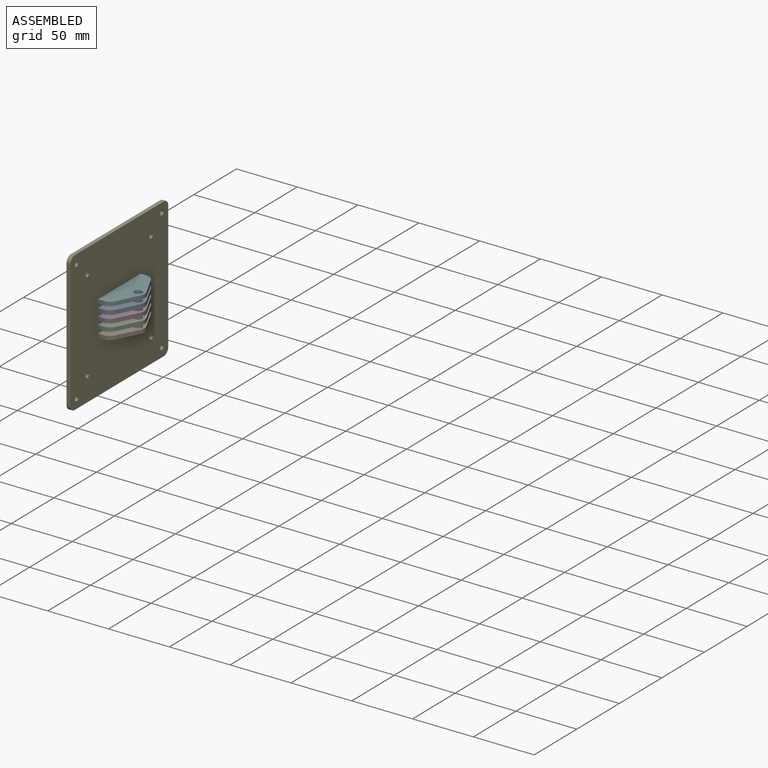
[diagram: assembled view]
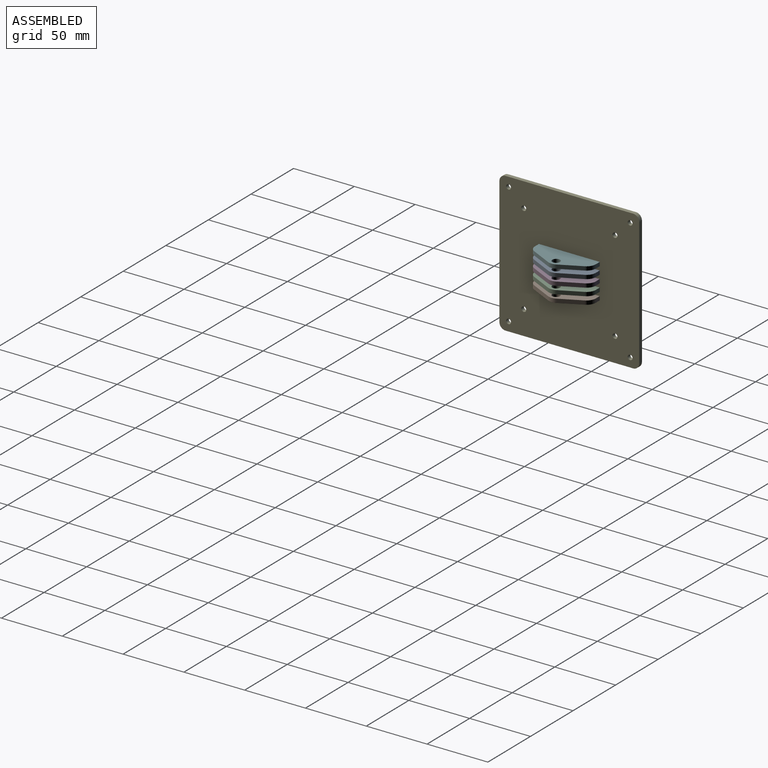
[diagram: assembled view, second angle]
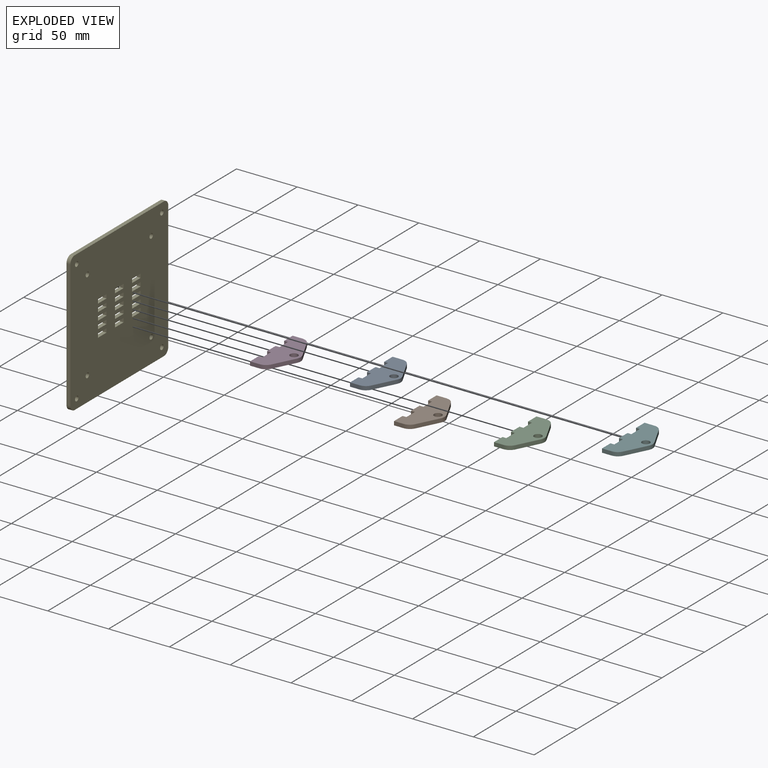
[diagram: exploded view]
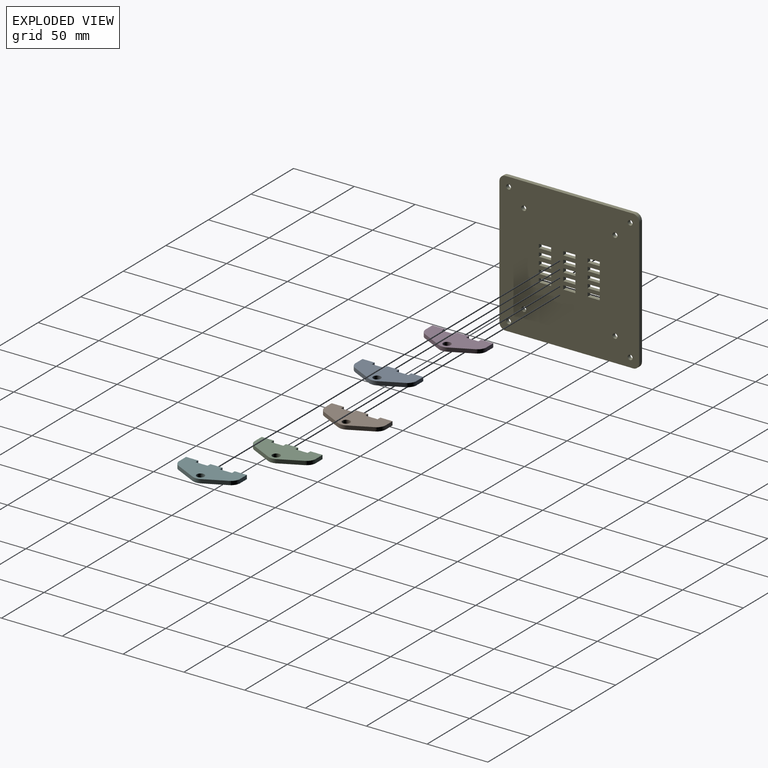
[diagram: exploded view, second angle]
ASSEMBLY  parts=6 mates=5
PART A: 19 faces, bbox 50x24.1x3.2 mm
  f0: plane 10x3.18mm, normal (0,-1,0), area 31.7mm2, adj f5,f6,f15,f16
  f1: plane 10x3.18mm, normal (0,-1,0), area 31.7mm2, adj f3,f5,f6,f13
  f2: plane 7.86x3.18mm, normal (-1,0,0), area 25mm2, adj f4,f5,f6,f10
  f3: plane 7.86x3.18mm, normal (1,0,0), area 25mm2, adj f1,f5,f6,f12
  f4: plane 10x3.18mm, normal (0,-1,0), area 31.8mm2, adj f2,f5,f6,f18
  f5: plane 50x24.11mm, normal (0,0,1), area 833mm2, adj f0,f1,f2,f3,f4,f7,f8,f9
  f6: plane 50x24.11mm, normal (0,0,-1), area 833mm2, adj f0,f1,f2,f3,f4,f7,f8,f9
  f7: cylinder r=3.17mm len=6.35mm, axis (0,0,1), area 63.3mm2, adj f5,f6
  f8: plane 17.5x8.75mm, normal (0.45,0.89,0), area 62.1mm2, adj f5,f6,f11,f12
  f9: plane 17.5x8.75mm, normal (-0.45,0.89,0), area 62.1mm2, adj f5,f6,f10,f11
  f10: cylinder r=7.5mm len=6.71mm, axis (0,0,1), area 26.4mm2, adj f2,f5,f6,f9
  f11: cylinder r=7.5mm len=6.71mm, axis (0,0,1), area 22.1mm2, adj f5,f6,f8,f9
  f12: cylinder r=7.5mm len=6.71mm, axis (0,0,-1), area 26.4mm2, adj f3,f5,f6,f8
  f13: plane 3.18x3.18mm, normal (-1,0,0), area 10.1mm2, adj f1,f5,f6,f14
  f14: plane 10x3.18mm, normal (0,-1,0), area 31.7mm2, adj f5,f6,f13,f15
  f15: plane 3.18x3.18mm, normal (1,0,0), area 10.1mm2, adj f0,f5,f6,f14
  f16: plane 3.18x3.18mm, normal (-1,0,0), area 10.1mm2, adj f0,f5,f6,f17
  f17: plane 10x3.18mm, normal (0,-1,0), area 31.7mm2, adj f5,f6,f16,f18
  f18: plane 3.18x3.18mm, normal (1,0,0), area 10.1mm2, adj f4,f5,f6,f17
PART B: same geometry as A
PART C: same geometry as A
PART D: same geometry as A
PART E: 78 faces, bbox 115x3.2x115 mm
  f0: plane 115x115mm, normal (0,-1,0), area 12626.8mm2, adj f2,f3,f4,f5,f6,f7,f8,f9
  f1: plane 115x115mm, normal (0,1,0), area 12626.8mm2, adj f2,f3,f4,f5,f6,f7,f8,f9
  f2: plane 105x3.18mm, normal (-1,0,0), area 333.4mm2, adj f0,f1,f14,f17
  f3: plane 105x3.18mm, normal (0,0,-1), area 333.4mm2, adj f0,f1,f14,f15
  f4: plane 105x3.18mm, normal (1,0,0), area 333.4mm2, adj f0,f1,f15,f16
  f5: plane 105x3.18mm, normal (0,0,1), area 333.4mm2, adj f0,f1,f16,f17
  f6: cylinder r=2mm len=4mm, axis (0,-1,0), area 39.9mm2, adj f0,f1
  f7: cylinder r=2mm len=4mm, axis (0,-1,0), area 39.9mm2, adj f0,f1
  f8: cylinder r=2mm len=4mm, axis (0,-1,0), area 39.9mm2, adj f0,f1
  f9: cylinder r=2mm len=4mm, axis (0,-1,0), area 39.9mm2, adj f0,f1
  f10: cylinder r=2mm len=4mm, axis (0,-1,0), area 39.9mm2, adj f0,f1
  f11: cylinder r=2mm len=4mm, axis (0,-1,0), area 39.9mm2, adj f0,f1
  f12: cylinder r=2mm len=4mm, axis (0,-1,0), area 39.9mm2, adj f0,f1
  f13: cylinder r=2mm len=4mm, axis (0,-1,0), area 39.9mm2, adj f0,f1
  f14: cylinder r=5mm len=5mm, axis (0,1,0), area 24.9mm2, adj f0,f1,f2,f3
  f15: cylinder r=5mm len=5mm, axis (0,-1,0), area 24.9mm2, adj f0,f1,f3,f4
  f16: cylinder r=5mm len=5mm, axis (0,1,0), area 24.9mm2, adj f0,f1,f4,f5
  f17: cylinder r=5mm len=5mm, axis (0,-1,0), area 24.9mm2, adj f0,f1,f2,f5
  f18: plane 3.18x3.18mm, normal (1,0,0), area 10.1mm2, adj f0,f1,f19,f21
  f19: plane 10x3.18mm, normal (0,0,1), area 31.8mm2, adj f0,f1,f18,f20
  f20: plane 3.18x3.18mm, normal (-1,0,0), area 10.1mm2, adj f0,f1,f19,f21
  f21: plane 10x3.18mm, normal (0,0,-1), area 31.8mm2, adj f0,f1,f18,f20
  f22: plane 3.18x3.18mm, normal (1,0,0), area 10.1mm2, adj f0,f1,f23,f25
  f23: plane 10x3.18mm, normal (0,0,1), area 31.8mm2, adj f0,f1,f22,f24
  f24: plane 3.18x3.18mm, normal (-1,0,0), area 10.1mm2, adj f0,f1,f23,f25
  f25: plane 10x3.18mm, normal (0,0,-1), area 31.8mm2, adj f0,f1,f22,f24
  f26: plane 3.18x3.18mm, normal (1,0,0), area 10.1mm2, adj f0,f1,f27,f29
  f27: plane 10x3.18mm, normal (0,0,1), area 31.8mm2, adj f0,f1,f26,f28
  f28: plane 3.18x3.18mm, normal (-1,0,0), area 10.1mm2, adj f0,f1,f27,f29
  f29: plane 10x3.18mm, normal (0,0,-1), area 31.8mm2, adj f0,f1,f26,f28
  f30: plane 3.18x3.18mm, normal (-1,0,0), area 10.1mm2, adj f0,f1,f31,f33
  f31: plane 10x3.18mm, normal (0,0,-1), area 31.8mm2, adj f0,f1,f30,f32
  f32: plane 3.18x3.18mm, normal (1,0,0), area 10.1mm2, adj f0,f1,f31,f33
  f33: plane 10x3.18mm, normal (0,0,1), area 31.8mm2, adj f0,f1,f30,f32
  f34: plane 3.18x3.18mm, normal (1,0,0), area 10.1mm2, adj f0,f1,f35,f37
  f35: plane 10x3.18mm, normal (0,0,1), area 31.8mm2, adj f0,f1,f34,f36
  f36: plane 3.18x3.18mm, normal (-1,0,0), area 10.1mm2, adj f0,f1,f35,f37
  f37: plane 10x3.18mm, normal (0,0,-1), area 31.8mm2, adj f0,f1,f34,f36
  f38: plane 3.18x3.18mm, normal (-1,0,0), area 10.1mm2, adj f0,f1,f39,f41
  f39: plane 10x3.18mm, normal (0,0,-1), area 31.8mm2, adj f0,f1,f38,f40
  f40: plane 3.18x3.18mm, normal (1,0,0), area 10.1mm2, adj f0,f1,f39,f41
  f41: plane 10x3.18mm, normal (0,0,1), area 31.8mm2, adj f0,f1,f38,f40
  f42: plane 3.18x3.18mm, normal (1,0,0), area 10.1mm2, adj f0,f1,f43,f45
  f43: plane 10x3.18mm, normal (0,0,1), area 31.8mm2, adj f0,f1,f42,f44
  f44: plane 3.18x3.18mm, normal (-1,0,0), area 10.1mm2, adj f0,f1,f43,f45
  f45: plane 10x3.18mm, normal (0,0,-1), area 31.8mm2, adj f0,f1,f42,f44
  f46: plane 3.18x3.18mm, normal (-1,0,0), area 10.1mm2, adj f0,f1,f47,f49
  f47: plane 10x3.18mm, normal (0,0,-1), area 31.8mm2, adj f0,f1,f46,f48
  f48: plane 3.18x3.18mm, normal (1,0,0), area 10.1mm2, adj f0,f1,f47,f49
  f49: plane 10x3.18mm, normal (0,0,1), area 31.8mm2, adj f0,f1,f46,f48
  f50: plane 3.18x3.18mm, normal (-1,0,0), area 10.1mm2, adj f0,f1,f51,f53
  f51: plane 10x3.18mm, normal (0,0,-1), area 31.8mm2, adj f0,f1,f50,f52
  f52: plane 3.18x3.18mm, normal (1,0,0), area 10.1mm2, adj f0,f1,f51,f53
  f53: plane 10x3.18mm, normal (0,0,1), area 31.8mm2, adj f0,f1,f50,f52
  f54: plane 3.18x3.18mm, normal (1,0,0), area 10.1mm2, adj f0,f1,f55,f57
  f55: plane 10x3.18mm, normal (0,0,1), area 31.8mm2, adj f0,f1,f54,f56
  f56: plane 3.18x3.18mm, normal (-1,0,0), area 10.1mm2, adj f0,f1,f55,f57
  f57: plane 10x3.18mm, normal (0,0,-1), area 31.8mm2, adj f0,f1,f54,f56
  f58: plane 3.18x3.18mm, normal (-1,0,0), area 10.1mm2, adj f0,f1,f59,f61
  f59: plane 10x3.18mm, normal (0,0,-1), area 31.8mm2, adj f0,f1,f58,f60
  f60: plane 3.18x3.18mm, normal (1,0,0), area 10.1mm2, adj f0,f1,f59,f61
  f61: plane 10x3.18mm, normal (0,0,1), area 31.8mm2, adj f0,f1,f58,f60
  f62: plane 3.18x3.18mm, normal (1,0,0), area 10.1mm2, adj f0,f1,f63,f65
  f63: plane 10x3.18mm, normal (0,0,1), area 31.8mm2, adj f0,f1,f62,f64
  f64: plane 3.18x3.18mm, normal (-1,0,0), area 10.1mm2, adj f0,f1,f63,f65
  f65: plane 10x3.18mm, normal (0,0,-1), area 31.8mm2, adj f0,f1,f62,f64
  f66: plane 3.18x3.18mm, normal (-1,0,0), area 10.1mm2, adj f0,f1,f67,f69
  f67: plane 10x3.18mm, normal (0,0,-1), area 31.8mm2, adj f0,f1,f66,f68
  f68: plane 3.18x3.18mm, normal (1,0,0), area 10.1mm2, adj f0,f1,f67,f69
  f69: plane 10x3.18mm, normal (0,0,1), area 31.8mm2, adj f0,f1,f66,f68
  f70: plane 3.18x3.18mm, normal (1,0,0), area 10.1mm2, adj f0,f1,f71,f73
  f71: plane 10x3.18mm, normal (0,0,1), area 31.8mm2, adj f0,f1,f70,f72
  f72: plane 3.18x3.18mm, normal (-1,0,0), area 10.1mm2, adj f0,f1,f71,f73
  f73: plane 10x3.18mm, normal (0,0,-1), area 31.8mm2, adj f0,f1,f70,f72
  f74: plane 3.18x3.18mm, normal (1,0,0), area 10.1mm2, adj f0,f1,f75,f77
  f75: plane 10x3.18mm, normal (0,0,1), area 31.8mm2, adj f0,f1,f74,f76
  f76: plane 3.18x3.18mm, normal (-1,0,0), area 10.1mm2, adj f0,f1,f75,f77
  f77: plane 10x3.18mm, normal (0,0,-1), area 31.8mm2, adj f0,f1,f74,f76
PART F: same geometry as A
PLACE A rot(axis=(0,0,-1),90deg) t=(-6.49,-29.17,-22.55)mm
PLACE B rot(axis=(0,0,-1),90deg) t=(-6.49,-29.17,-41.6)mm
PLACE C rot(axis=(0,0,-1),90deg) t=(-6.49,-29.17,-35.25)mm
PLACE D rot(axis=(0,0,-1),90deg) t=(-6.49,-29.17,-28.9)mm
PLACE E rot(axis=(0,0,-1),90deg) t=(-15.81,-29.17,-27.31)mm
PLACE F rot(axis=(0,0,-1),90deg) t=(-6.49,-29.17,-16.2)mm
MATE fastened C.f4 <-> E.f0  axis (-1,0,0) through (-18.99,-4.17,-33.66)mm
MATE fastened A.f4 <-> E.f0  axis (-1,0,0) through (-18.99,-4.17,-20.96)mm
MATE fastened B.f4 <-> E.f0  axis (-1,0,0) through (-18.99,-4.17,-40.01)mm
MATE fastened F.f4 <-> E.f0  axis (-1,0,0) through (-18.99,-4.17,-14.61)mm
MATE fastened D.f1 <-> E.f0  axis (-1,0,0) through (-18.99,-54.17,-27.31)mm
